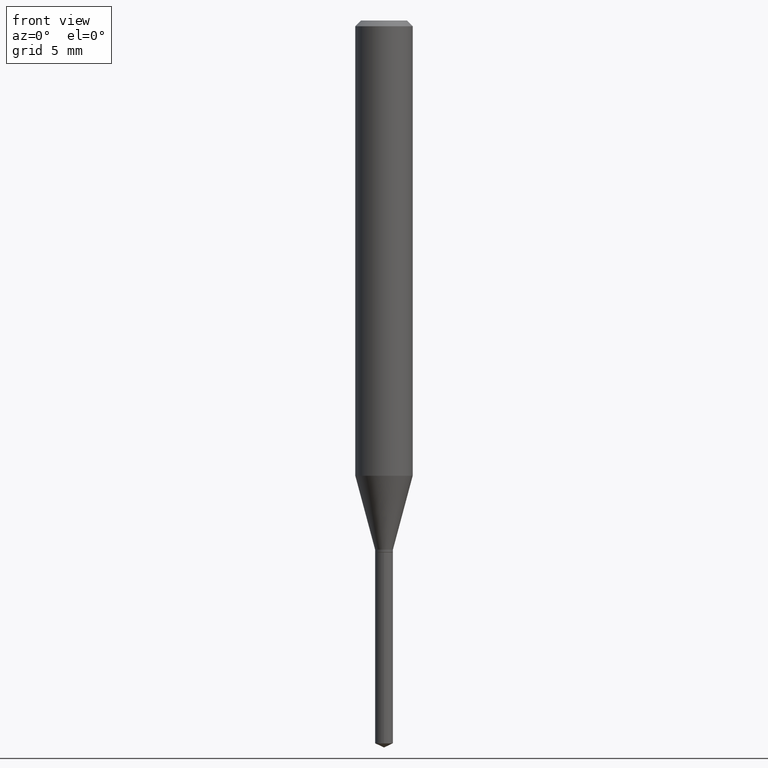
[diagram: clean part render]
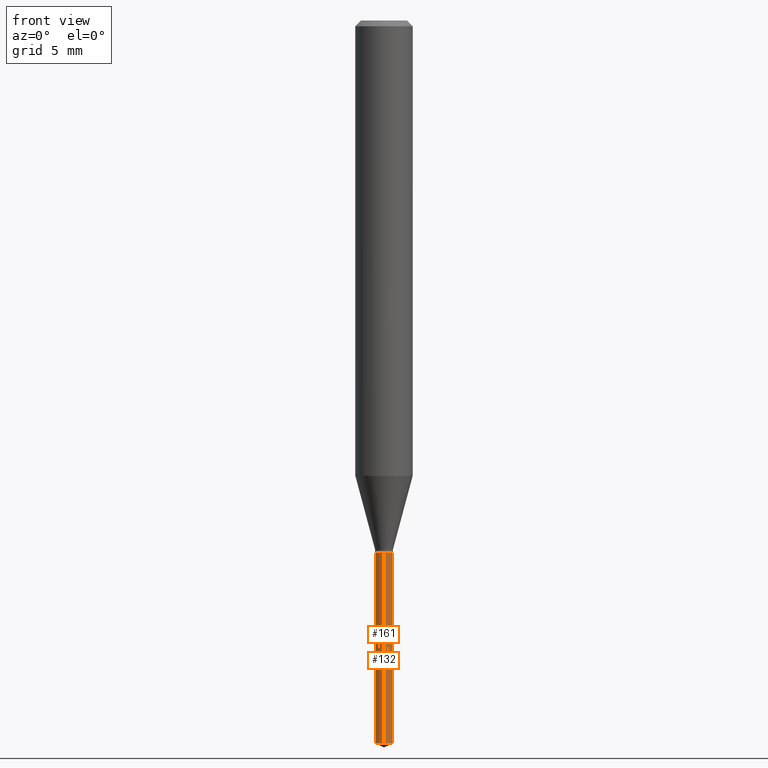
[diagram: same view with one multi-face feature highlighted, each face labeled with its STEP entity id]
A machine part, front view. The highlighted faces form ONE feature: a constant-radius fillet chain: 2 tangent blend faces with common blend radius 0.4648 mm. The faces share edges in the B-rep.
Their STEP definitions:
[1] entity #132 (Cylinder):
#1 = CIRCLE ( 'NONE', #402, 0.01830000000000000029 ) ;
#19 = DIRECTION ( 'NONE',  ( -6.982962677686265922E-15, -1.000000000000000000, 0.000000000000000000 ) ) ;
#38 = FACE_OUTER_BOUND ( 'NONE', #163, .T. ) ;
#39 = DIRECTION ( 'NONE',  ( -6.982962677686265922E-15, -1.000000000000000000, 0.000000000000000000 ) ) ;
#52 = CARTESIAN_POINT ( 'NONE',  ( 2.676565608369631794E-29, -3.821426325363822773E-15, -1.094499999999999806 ) ) ;
#73 = LINE ( 'NONE', #264, #110 ) ;
#86 = VECTOR ( 'NONE', #251, 39.37007874015748143 ) ;
#99 = LINE ( 'NONE', #143, #86 ) ;
#110 = VECTOR ( 'NONE', #236, 39.37007874015748143 ) ;
#125 = AXIS2_PLACEMENT_3D ( 'NONE', #352, #311, #39 ) ;
#132 = ADVANCED_FACE ( 'NONE', ( #38 ), #379, .T. ) ;
#143 = CARTESIAN_POINT ( 'NONE',  ( 1.300293206441250834E-16, 0.01829999999999617696, -1.094499999999999806 ) ) ;
#148 = AXIS2_PLACEMENT_3D ( 'NONE', #181, #332, #227 ) ;
#163 = EDGE_LOOP ( 'NONE', ( #380, #407, #190, #306 ) ) ;
#168 = EDGE_CURVE ( 'NONE', #222, #335, #73, .T. ) ;
#181 = CARTESIAN_POINT ( 'NONE',  ( 3.637794463447608962E-29, -5.193815473249464484E-15, -1.487566569855763410 ) ) ;
#190 = ORIENTED_EDGE ( 'NONE', *, *, #369, .F. ) ;
#210 = DIRECTION ( 'NONE',  ( -2.445460715294871217E-29, 3.491492925458510144E-15, 1.000000000000000000 ) ) ;
#214 = VERTEX_POINT ( 'NONE', #307 ) ;
#217 = VERTEX_POINT ( 'NONE', #421 ) ;
#222 = VERTEX_POINT ( 'NONE', #384 ) ;
#227 = DIRECTION ( 'NONE',  ( -6.982962677686265922E-15, -1.000000000000000000, 0.000000000000000000 ) ) ;
#236 = DIRECTION ( 'NONE',  ( -2.445460715294871217E-29, 3.491492925458510144E-15, 1.000000000000000000 ) ) ;
#242 = CARTESIAN_POINT ( 'NONE',  ( -1.277882170016318992E-16, -0.01830000000000382362, -1.094499999999999806 ) ) ;
#251 = DIRECTION ( 'NONE',  ( -2.445460715294871217E-29, 3.491492925458510144E-15, 1.000000000000000000 ) ) ;
#264 = CARTESIAN_POINT ( 'NONE',  ( -1.277882170016318992E-16, -0.01830000000000382362, -1.094499999999999806 ) ) ;
#306 = ORIENTED_EDGE ( 'NONE', *, *, #168, .F. ) ;
#307 = CARTESIAN_POINT ( 'NONE',  ( 1.300293206441347223E-16, 0.01829999999999480653, -1.487566569855763410 ) ) ;
#311 = DIRECTION ( 'NONE',  ( -2.445460715294871217E-29, 3.491492925458510144E-15, 1.000000000000000000 ) ) ;
#313 = CIRCLE ( 'NONE', #148, 0.01830000000000000029 ) ;
#332 = DIRECTION ( 'NONE',  ( -2.445460715294871217E-29, 3.491492925458510144E-15, 1.000000000000000000 ) ) ;
#335 = VERTEX_POINT ( 'NONE', #242 ) ;
#352 = CARTESIAN_POINT ( 'NONE',  ( 2.676565608369631794E-29, -3.821426325363822773E-15, -1.094499999999999806 ) ) ;
#369 = EDGE_CURVE ( 'NONE', #335, #217, #1, .T. ) ;
#379 = CYLINDRICAL_SURFACE ( 'NONE', #125, 0.01830000000000000029 ) ;
#380 = ORIENTED_EDGE ( 'NONE', *, *, #428, .T. ) ;
#384 = CARTESIAN_POINT ( 'NONE',  ( -1.277882170016222849E-16, -0.01830000000000519753, -1.487566569855763410 ) ) ;
#402 = AXIS2_PLACEMENT_3D ( 'NONE', #52, #210, #19 ) ;
#407 = ORIENTED_EDGE ( 'NONE', *, *, #471, .T. ) ;
#421 = CARTESIAN_POINT ( 'NONE',  ( 1.300293206441347716E-16, 0.01829999999999618043, -1.094499999999999806 ) ) ;
#428 = EDGE_CURVE ( 'NONE', #222, #214, #313, .T. ) ;
#471 = EDGE_CURVE ( 'NONE', #214, #217, #99, .T. ) ;
[2] entity #161 (Cylinder):
#25 = EDGE_CURVE ( 'NONE', #217, #335, #109, .T. ) ;
#43 = CYLINDRICAL_SURFACE ( 'NONE', #157, 0.01830000000000000029 ) ;
#73 = LINE ( 'NONE', #264, #110 ) ;
#86 = VECTOR ( 'NONE', #251, 39.37007874015748143 ) ;
#90 = EDGE_LOOP ( 'NONE', ( #367, #289, #443, #230 ) ) ;
#99 = LINE ( 'NONE', #143, #86 ) ;
#109 = CIRCLE ( 'NONE', #358, 0.01830000000000000029 ) ;
#110 = VECTOR ( 'NONE', #236, 39.37007874015748143 ) ;
#122 = CARTESIAN_POINT ( 'NONE',  ( 3.637794463447608962E-29, -5.193815473249464484E-15, -1.487566569855763410 ) ) ;
#139 = CARTESIAN_POINT ( 'NONE',  ( 2.676565608369631794E-29, -3.821426325363822773E-15, -1.094499999999999806 ) ) ;
#143 = CARTESIAN_POINT ( 'NONE',  ( 1.300293206441250834E-16, 0.01829999999999617696, -1.094499999999999806 ) ) ;
#152 = FACE_OUTER_BOUND ( 'NONE', #90, .T. ) ;
#157 = AXIS2_PLACEMENT_3D ( 'NONE', #461, #263, #452 ) ;
#161 = ADVANCED_FACE ( 'NONE', ( #152 ), #43, .T. ) ;
#168 = EDGE_CURVE ( 'NONE', #222, #335, #73, .T. ) ;
#184 = AXIS2_PLACEMENT_3D ( 'NONE', #122, #239, #315 ) ;
#214 = VERTEX_POINT ( 'NONE', #307 ) ;
#217 = VERTEX_POINT ( 'NONE', #421 ) ;
#222 = VERTEX_POINT ( 'NONE', #384 ) ;
#224 = DIRECTION ( 'NONE',  ( -6.982962677686265922E-15, -1.000000000000000000, 0.000000000000000000 ) ) ;
#230 = ORIENTED_EDGE ( 'NONE', *, *, #25, .F. ) ;
#236 = DIRECTION ( 'NONE',  ( -2.445460715294871217E-29, 3.491492925458510144E-15, 1.000000000000000000 ) ) ;
#239 = DIRECTION ( 'NONE',  ( -2.445460715294871217E-29, 3.491492925458510144E-15, 1.000000000000000000 ) ) ;
#242 = CARTESIAN_POINT ( 'NONE',  ( -1.277882170016318992E-16, -0.01830000000000382362, -1.094499999999999806 ) ) ;
#251 = DIRECTION ( 'NONE',  ( -2.445460715294871217E-29, 3.491492925458510144E-15, 1.000000000000000000 ) ) ;
#263 = DIRECTION ( 'NONE',  ( -2.445460715294871217E-29, 3.491492925458510144E-15, 1.000000000000000000 ) ) ;
#264 = CARTESIAN_POINT ( 'NONE',  ( -1.277882170016318992E-16, -0.01830000000000382362, -1.094499999999999806 ) ) ;
#271 = EDGE_CURVE ( 'NONE', #214, #222, #304, .T. ) ;
#289 = ORIENTED_EDGE ( 'NONE', *, *, #271, .T. ) ;
#304 = CIRCLE ( 'NONE', #184, 0.01830000000000000029 ) ;
#307 = CARTESIAN_POINT ( 'NONE',  ( 1.300293206441347223E-16, 0.01829999999999480653, -1.487566569855763410 ) ) ;
#315 = DIRECTION ( 'NONE',  ( -6.982962677686265922E-15, -1.000000000000000000, 0.000000000000000000 ) ) ;
#335 = VERTEX_POINT ( 'NONE', #242 ) ;
#358 = AXIS2_PLACEMENT_3D ( 'NONE', #139, #368, #224 ) ;
#367 = ORIENTED_EDGE ( 'NONE', *, *, #471, .F. ) ;
#368 = DIRECTION ( 'NONE',  ( -2.445460715294871217E-29, 3.491492925458510144E-15, 1.000000000000000000 ) ) ;
#384 = CARTESIAN_POINT ( 'NONE',  ( -1.277882170016222849E-16, -0.01830000000000519753, -1.487566569855763410 ) ) ;
#421 = CARTESIAN_POINT ( 'NONE',  ( 1.300293206441347716E-16, 0.01829999999999618043, -1.094499999999999806 ) ) ;
#443 = ORIENTED_EDGE ( 'NONE', *, *, #168, .T. ) ;
#452 = DIRECTION ( 'NONE',  ( -6.982962677686265922E-15, -1.000000000000000000, 0.000000000000000000 ) ) ;
#461 = CARTESIAN_POINT ( 'NONE',  ( 2.676565608369631794E-29, -3.821426325363822773E-15, -1.094499999999999806 ) ) ;
#471 = EDGE_CURVE ( 'NONE', #214, #217, #99, .T. ) ;